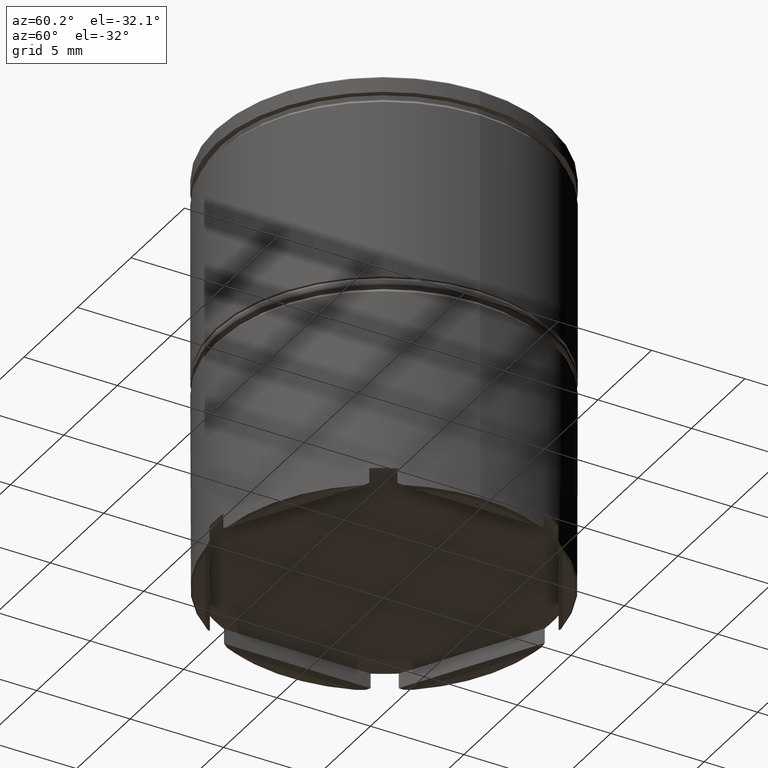
[diagram: clean part render]
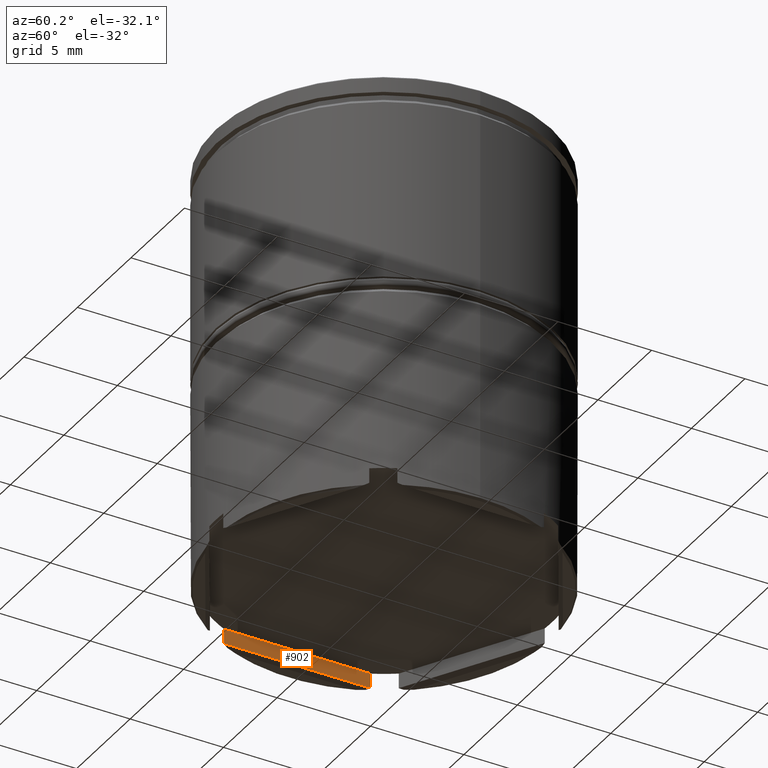
[diagram: same view with one face highlighted and labeled with its STEP entity id]
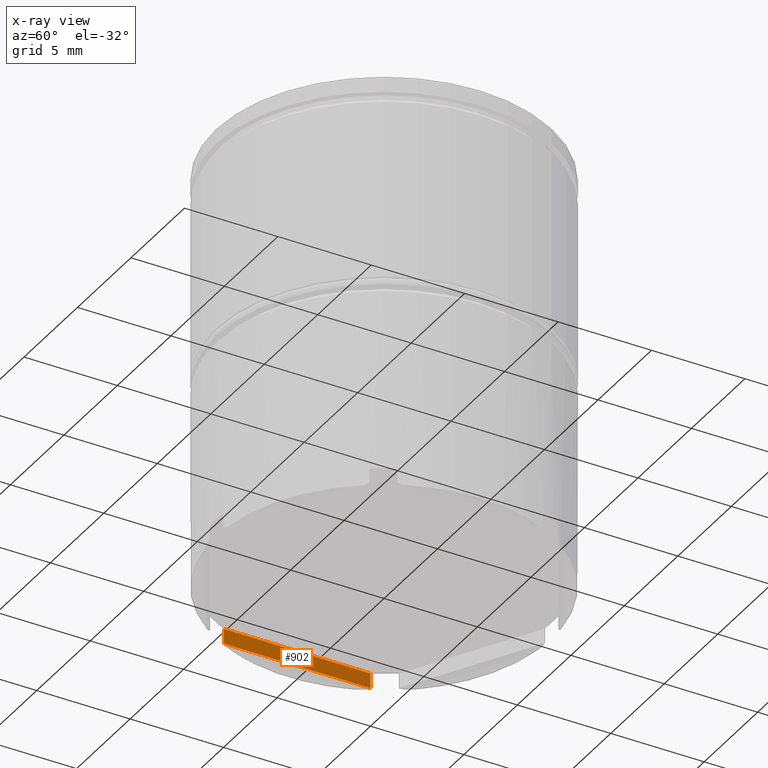
[diagram: x-ray of the same camera — body ghosted, the highlighted face saturated]
A machine part, auxiliary view. The second image highlights one B-rep face of the part: STEP entity #902.
The next image is the same camera in x-ray: the body ghosted, the highlighted face saturated — about 0% of this face is hidden behind the body in this view.
In plain terms, the highlighted planar face has unit normal (-1, 0, 0).
Its self-contained STEP definition (entity closure, byte-faithful):
#79 = CARTESIAN_POINT ( 'NONE',  ( -8.100000000000003197, 3.923009049186599206, 0.000000000000000000 ) ) ;
#123 = EDGE_CURVE ( 'NONE', #602, #1177, #1221, .T. ) ;
#141 = CARTESIAN_POINT ( 'NONE',  ( -8.100000000000003197, -3.923009049186599206, -22.29999999999999716 ) ) ;
#148 = EDGE_CURVE ( 'NONE', #1176, #602, #1584, .T. ) ;
#149 = EDGE_CURVE ( 'NONE', #600, #1177, #1594, .T. ) ;
#150 = DIRECTION ( 'NONE',  ( 0.000000000000000000, 0.000000000000000000, 1.000000000000000000 ) ) ;
#233 = DIRECTION ( 'NONE',  ( 0.000000000000000000, 0.000000000000000000, -1.000000000000000000 ) ) ;
#237 = VECTOR ( 'NONE', #586, 1000.000000000000000 ) ;
#261 = VECTOR ( 'NONE', #1078, 1000.000000000000000 ) ;
#488 = CARTESIAN_POINT ( 'NONE',  ( -8.100000000000003197, -3.923009049186599206, -21.50000000000000000 ) ) ;
#495 = CARTESIAN_POINT ( 'NONE',  ( -8.100000000000003197, -3.923009049186599206, 0.000000000000000000 ) ) ;
#536 = FACE_OUTER_BOUND ( 'NONE', #1284, .T. ) ;
#586 = DIRECTION ( 'NONE',  ( 0.000000000000000000, 1.000000000000000000, 0.000000000000000000 ) ) ;
#600 = VERTEX_POINT ( 'NONE', #488 ) ;
#602 = VERTEX_POINT ( 'NONE', #1501 ) ;
#632 = ORIENTED_EDGE ( 'NONE', *, *, #148, .T. ) ;
#640 = EDGE_CURVE ( 'NONE', #600, #1176, #978, .T. ) ;
#751 = CARTESIAN_POINT ( 'NONE',  ( -8.100000000000003197, 3.923009049186599206, -21.50000000000000000 ) ) ;
#768 = CARTESIAN_POINT ( 'NONE',  ( -8.100000000000003197, -4.676537180435969887, -21.50000000000000000 ) ) ;
#837 = ORIENTED_EDGE ( 'NONE', *, *, #123, .T. ) ;
#902 = ADVANCED_FACE ( 'NONE', ( #536 ), #1155, .F. ) ;
#957 = CARTESIAN_POINT ( 'NONE',  ( -8.100000000000003197, -4.676537180435969887, -21.50000000000000000 ) ) ;
#974 = DIRECTION ( 'NONE',  ( -0.000000000000000000, -0.000000000000000000, 1.000000000000000000 ) ) ;
#978 = LINE ( 'NONE', #495, #1212 ) ;
#1078 = DIRECTION ( 'NONE',  ( 0.000000000000000000, 1.000000000000000000, 0.000000000000000000 ) ) ;
#1155 = PLANE ( 'NONE',  #1315 ) ;
#1176 = VERTEX_POINT ( 'NONE', #141 ) ;
#1177 = VERTEX_POINT ( 'NONE', #751 ) ;
#1212 = VECTOR ( 'NONE', #233, 1000.000000000000000 ) ;
#1221 = LINE ( 'NONE', #79, #1635 ) ;
#1246 = ORIENTED_EDGE ( 'NONE', *, *, #149, .F. ) ;
#1276 = ORIENTED_EDGE ( 'NONE', *, *, #640, .T. ) ;
#1284 = EDGE_LOOP ( 'NONE', ( #1276, #632, #837, #1246 ) ) ;
#1288 = DIRECTION ( 'NONE',  ( -1.000000000000000000, 0.000000000000000000, 0.000000000000000000 ) ) ;
#1315 = AXIS2_PLACEMENT_3D ( 'NONE', #768, #1288, #150 ) ;
#1342 = CARTESIAN_POINT ( 'NONE',  ( -8.100000000000003197, 3.687817782917153675, -22.29999999999999716 ) ) ;
#1501 = CARTESIAN_POINT ( 'NONE',  ( -8.100000000000003197, 3.923009049186599206, -22.29999999999999716 ) ) ;
#1584 = LINE ( 'NONE', #1342, #261 ) ;
#1594 = LINE ( 'NONE', #957, #237 ) ;
#1635 = VECTOR ( 'NONE', #974, 1000.000000000000000 ) ;